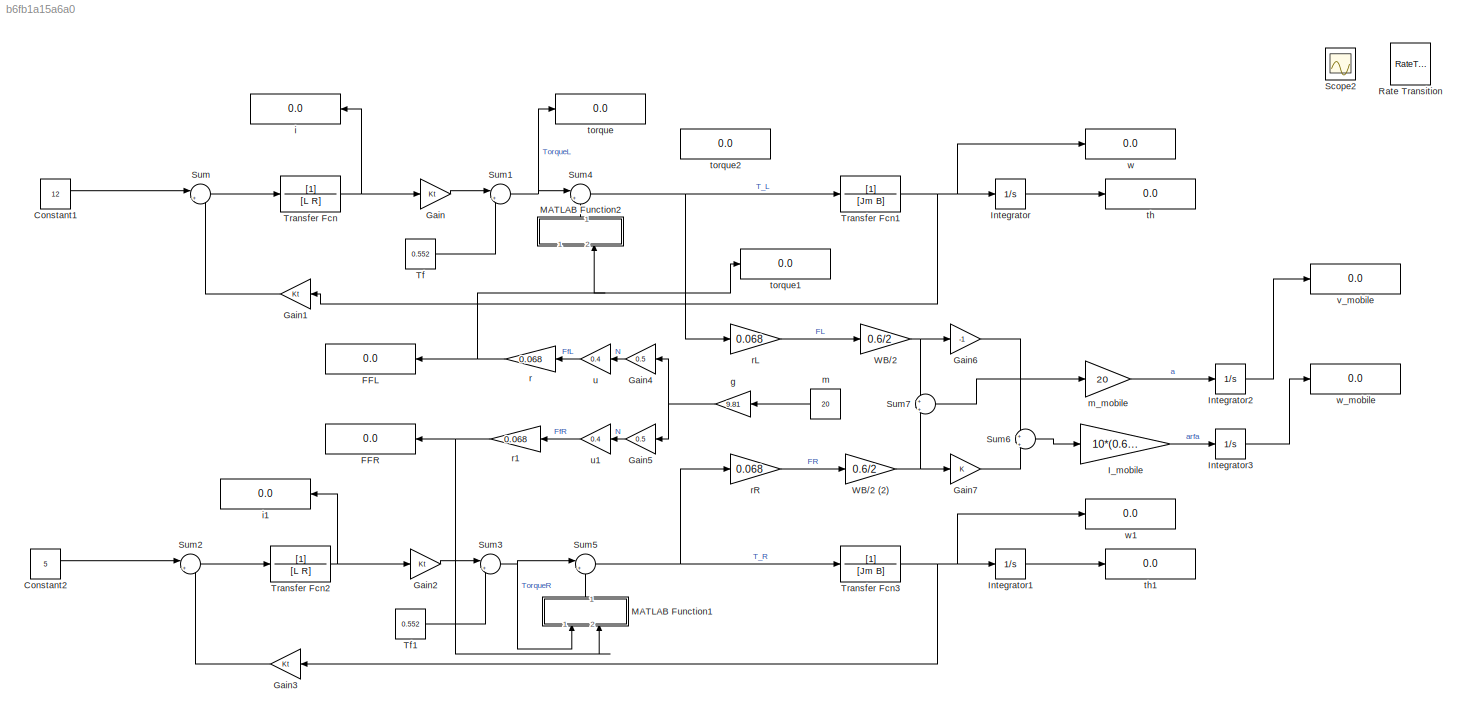
MODEL slx_b6fb1a15a6a0
KIND model
CONFIG AbsTol = auto
CONFIG FixedStep = 0.0001
CONFIG MaxStep = auto
CONFIG MinStep = auto
CONFIG RelTol = 1e-3
CONFIG SampleTimeConstraint = Unconstrained
CONFIG Solver = VariableStepAuto
CONFIG SolverMode = Auto
CONFIG SolverName = VariableStepAuto
CONFIG StartTime = 0.0
CONFIG StopTime = inf
BLOCK [Constant] Constant1
  Value = 12
BLOCK [Constant] Constant2
  Value = 5
BLOCK [Display] FFL
  Decimation = 1
  Ports = [1]
BLOCK [Display] FFR
  Decimation = 1
  Ports = [1]
BLOCK [Gain] Gain
  Gain = Kt
  OutDataTypeStr = Inherit: Inherit via internal rule
  ParamDataTypeStr = Inherit: Inherit via internal rule
  SaturateOnIntegerOverflow = off
BLOCK [Gain] Gain1
  Gain = Kt
  OutDataTypeStr = Inherit: Inherit via internal rule
  ParamDataTypeStr = Inherit: Inherit via internal rule
  SaturateOnIntegerOverflow = off
BLOCK [Gain] Gain2
  Gain = Kt
  OutDataTypeStr = Inherit: Inherit via internal rule
  ParamDataTypeStr = Inherit: Inherit via internal rule
  SaturateOnIntegerOverflow = off
BLOCK [Gain] Gain3
  Gain = Kt
  OutDataTypeStr = Inherit: Inherit via internal rule
  ParamDataTypeStr = Inherit: Inherit via internal rule
  SaturateOnIntegerOverflow = off
BLOCK [Gain] Gain4
  Gain = 0.5
  OutDataTypeStr = Inherit: Inherit via internal rule
  ParamDataTypeStr = Inherit: Inherit via internal rule
  SaturateOnIntegerOverflow = off
BLOCK [Gain] Gain5
  Gain = 0.5
  OutDataTypeStr = Inherit: Inherit via internal rule
  ParamDataTypeStr = Inherit: Inherit via internal rule
  SaturateOnIntegerOverflow = off
BLOCK [Gain] Gain6
  Gain = -1
  OutDataTypeStr = Inherit: Inherit via internal rule
  ParamDataTypeStr = Inherit: Inherit via internal rule
  SaturateOnIntegerOverflow = off
BLOCK [Gain] Gain7
  OutDataTypeStr = Inherit: Inherit via internal rule
  ParamDataTypeStr = Inherit: Inherit via internal rule
  SaturateOnIntegerOverflow = off
BLOCK [Gain] I_mobile
  Gain = 10*(0.6/2)^2
  OutDataTypeStr = Inherit: Inherit via internal rule
  ParamDataTypeStr = Inherit: Inherit via internal rule
  SaturateOnIntegerOverflow = off
BLOCK [Integrator] Integrator
  Ports = [1, 1]
BLOCK [Integrator] Integrator1
  Ports = [1, 1]
BLOCK [Integrator] Integrator2
  Ports = [1, 1]
BLOCK [Integrator] Integrator3
  Ports = [1, 1]
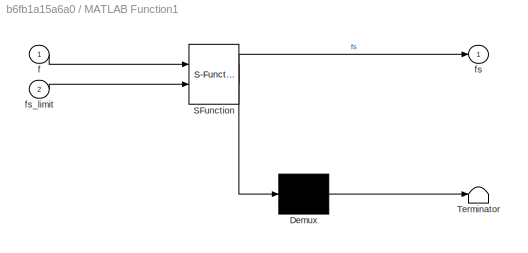
BLOCK [SubSystem] MATLAB Function1
  ErrorFcn = Stateflow.Translate.translate
  PermitHierarchicalResolution = ExplicitOnly
  Ports = [2, 1]
  RequestExecContextInheritance = off
  SFBlockType = MATLAB Function
  TreatAsAtomicUnit = on
  Variant = off
BLOCK [Demux] MATLAB Function1/ Demux 
  Outputs = 1
  Ports = [1, 1]
BLOCK [S-Function] MATLAB Function1/ SFunction 
  EnableBusSupport = on
  FunctionName = sf_sfun
  PortCounts = [2 2]
  Ports = [2, 2]
  SFunctionDeploymentMode = off
  Tag = Stateflow S-Function diff_mobile_model 1
BLOCK [Terminator] MATLAB Function1/ Terminator 
BLOCK [Inport] MATLAB Function1/f
  IconDisplay = Port number
BLOCK [Outport] MATLAB Function1/fs
  IconDisplay = Port number
BLOCK [Inport] MATLAB Function1/fs_limit
  IconDisplay = Port number
  Port = 2
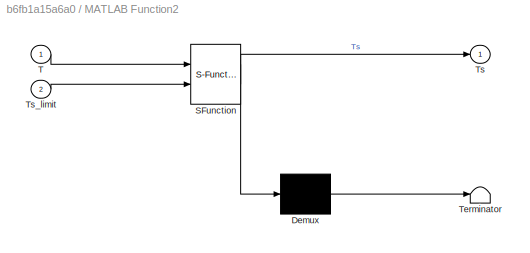
BLOCK [SubSystem] MATLAB Function2
  ErrorFcn = Stateflow.Translate.translate
  PermitHierarchicalResolution = ExplicitOnly
  Ports = [2, 1]
  RequestExecContextInheritance = off
  SFBlockType = MATLAB Function
  TreatAsAtomicUnit = on
  Variant = off
BLOCK [Demux] MATLAB Function2/ Demux 
  Outputs = 1
  Ports = [1, 1]
BLOCK [S-Function] MATLAB Function2/ SFunction 
  EnableBusSupport = on
  FunctionName = sf_sfun
  PortCounts = [2 2]
  Ports = [2, 2]
  SFunctionDeploymentMode = off
  Tag = Stateflow S-Function diff_mobile_model 2
BLOCK [Terminator] MATLAB Function2/ Terminator 
BLOCK [Inport] MATLAB Function2/T
  IconDisplay = Port number
BLOCK [Outport] MATLAB Function2/Ts
  IconDisplay = Port number
BLOCK [Inport] MATLAB Function2/Ts_limit
  IconDisplay = Port number
  Port = 2
BLOCK [RateTransition] Rate Transition
BLOCK [Scope] Scope2
  Ports = [1]
  ScopeSpecificationString = Simulink.scopes.TimeScopeBlockCfg('CurrentConfiguration', extmgr.ConfigurationSet(extmgr.Configuration('Core','General UI',true),extmgr.Configuration('Core','Source UI',true),extmgr.Configuration('Sources','WiredSimulink',true),extmgr.Configuration('Visuals','Time Domain',true,'SerializedDisplays',{struct('MinYLimReal','-1.5','MaxYLimReal','13.5','YLabelReal','','MinYLimMag','0.00000','MaxYLimMag'...<+1357ch>
BLOCK [Sum] Sum
  IconShape = round
  InputSameDT = off
  Inputs = |+-
  OutDataTypeStr = Inherit: Inherit via internal rule
  Ports = [2, 1]
  SaturateOnIntegerOverflow = off
BLOCK [Sum] Sum1
  IconShape = round
  InputSameDT = off
  Inputs = |+-
  OutDataTypeStr = Inherit: Inherit via internal rule
  Ports = [2, 1]
  SaturateOnIntegerOverflow = off
BLOCK [Sum] Sum2
  IconShape = round
  InputSameDT = off
  Inputs = |+-
  OutDataTypeStr = Inherit: Inherit via internal rule
  Ports = [2, 1]
  SaturateOnIntegerOverflow = off
BLOCK [Sum] Sum3
  IconShape = round
  InputSameDT = off
  Inputs = |+-
  OutDataTypeStr = Inherit: Inherit via internal rule
  Ports = [2, 1]
  SaturateOnIntegerOverflow = off
BLOCK [Sum] Sum4
  IconShape = round
  InputSameDT = off
  Inputs = |+-
  OutDataTypeStr = Inherit: Inherit via internal rule
  Ports = [2, 1]
  SaturateOnIntegerOverflow = off
BLOCK [Sum] Sum5
  IconShape = round
  InputSameDT = off
  Inputs = |+-
  OutDataTypeStr = Inherit: Inherit via internal rule
  Ports = [2, 1]
  SaturateOnIntegerOverflow = off
BLOCK [Sum] Sum6
  IconShape = round
  InputSameDT = off
  Inputs = +|+
  OutDataTypeStr = Inherit: Inherit via internal rule
  Ports = [2, 1]
  SaturateOnIntegerOverflow = off
BLOCK [Sum] Sum7
  IconShape = round
  InputSameDT = off
  Inputs = +|+
  OutDataTypeStr = Inherit: Inherit via internal rule
  Ports = [2, 1]
  SaturateOnIntegerOverflow = off
BLOCK [Constant] Tf
  Value = 0.552
BLOCK [Constant] Tf1
  Value = 0.552
BLOCK [TransferFcn] Transfer Fcn
  Denominator = [L R]
BLOCK [TransferFcn] Transfer Fcn1
  Denominator = [Jm B]
BLOCK [TransferFcn] Transfer Fcn2
  Denominator = [L R]
BLOCK [TransferFcn] Transfer Fcn3
  Denominator = [Jm B]
BLOCK [Gain] WB//2
  Gain = 0.6/2
  OutDataTypeStr = Inherit: Inherit via internal rule
  ParamDataTypeStr = Inherit: Inherit via internal rule
  SaturateOnIntegerOverflow = off
BLOCK [Gain] WB//2 (2)
  Gain = 0.6/2
  OutDataTypeStr = Inherit: Inherit via internal rule
  ParamDataTypeStr = Inherit: Inherit via internal rule
  SaturateOnIntegerOverflow = off
BLOCK [Gain] g
  Gain = 9.81
  OutDataTypeStr = Inherit: Inherit via internal rule
  ParamDataTypeStr = Inherit: Inherit via internal rule
  SaturateOnIntegerOverflow = off
BLOCK [Display] i
  Decimation = 1
  Ports = [1]
BLOCK [Display] i1
  Decimation = 1
  Ports = [1]
BLOCK [Constant] m
  Value = 20
BLOCK [Gain] m_mobile
  Gain = 20
  OutDataTypeStr = Inherit: Inherit via internal rule
  ParamDataTypeStr = Inherit: Inherit via internal rule
  SaturateOnIntegerOverflow = off
BLOCK [Gain] r
  Gain = 0.068
  OutDataTypeStr = Inherit: Inherit via internal rule
  ParamDataTypeStr = Inherit: Inherit via internal rule
  SaturateOnIntegerOverflow = off
BLOCK [Gain] r1
  Gain = 0.068
  OutDataTypeStr = Inherit: Inherit via internal rule
  ParamDataTypeStr = Inherit: Inherit via internal rule
  SaturateOnIntegerOverflow = off
BLOCK [Gain] rL
  Gain = 0.068
  OutDataTypeStr = Inherit: Inherit via internal rule
  ParamDataTypeStr = Inherit: Inherit via internal rule
  SaturateOnIntegerOverflow = off
BLOCK [Gain] rR
  Gain = 0.068
  OutDataTypeStr = Inherit: Inherit via internal rule
  ParamDataTypeStr = Inherit: Inherit via internal rule
  SaturateOnIntegerOverflow = off
BLOCK [Display] th
  Decimation = 1
  Ports = [1]
BLOCK [Display] th1
  Decimation = 1
  Ports = [1]
BLOCK [Display] torque
  Decimation = 1
  Ports = [1]
BLOCK [Display] torque1
  Decimation = 1
  Ports = [1]
BLOCK [Display] torque2
  Decimation = 1
  Ports = [1]
BLOCK [Gain] u
  Gain = 0.4
  OutDataTypeStr = Inherit: Inherit via internal rule
  ParamDataTypeStr = Inherit: Inherit via internal rule
  SaturateOnIntegerOverflow = off
BLOCK [Gain] u1
  Gain = 0.4
  OutDataTypeStr = Inherit: Inherit via internal rule
  ParamDataTypeStr = Inherit: Inherit via internal rule
  SaturateOnIntegerOverflow = off
BLOCK [Display] v_mobile
  Decimation = 1
  Ports = [1]
BLOCK [Display] w
  Decimation = 1
  Ports = [1]
BLOCK [Display] w1
  Decimation = 1
  Ports = [1]
BLOCK [Display] w_mobile
  Decimation = 1
  Ports = [1]
LINE Constant1:1 -> Sum:1
LINE Constant2:1 -> Sum2:1
LINE Gain1:1 -> Sum:2
LINE Gain2:1 -> Sum3:1
LINE Gain3:1 -> Sum2:2
LINE Gain4:1 -> u:1
LINE Gain5:1 -> u1:1
LINE Gain6:1 -> Sum6:1
LINE Gain7:1 -> Sum6:2
LINE Gain:1 -> Sum1:1
LINE I_mobile:1 -> Integrator3:1
LINE Integrator1:1 -> th1:1
LINE Integrator2:1 -> v_mobile:1
LINE Integrator3:1 -> w_mobile:1
LINE Integrator:1 -> th:1
LINE MATLAB Function1:1 -> Sum5:2
LINE MATLAB Function2:1 -> Sum4:2
NET Sum1:1 -> Sum4:1, torque:1
LINE Sum2:1 -> Transfer Fcn2:1
NET Sum3:1 -> MATLAB Function1:1, Sum5:1
NET Sum4:1 -> Transfer Fcn1:1, rL:1
NET Sum5:1 -> Transfer Fcn3:1, rR:1
LINE Sum6:1 -> I_mobile:1
LINE Sum7:1 -> m_mobile:1
LINE Sum:1 -> Transfer Fcn:1
LINE Tf1:1 -> Sum3:2
LINE Tf:1 -> Sum1:2
NET Transfer Fcn1:1 -> Gain1:1, Integrator:1, w:1
NET Transfer Fcn2:1 -> Gain2:1, i1:1
NET Transfer Fcn3:1 -> Gain3:1, Integrator1:1, w1:1
NET Transfer Fcn:1 -> Gain:1, i:1
NET WB//2 (2):1 -> Gain7:1, Sum7:2
NET WB//2:1 -> Gain6:1, Sum7:1
NET g:1 -> Gain4:1, Gain5:1
LINE m:1 -> g:1
LINE m_mobile:1 -> Integrator2:1
NET r1:1 -> FFR:1, MATLAB Function1:2
NET r:1 -> FFL:1, MATLAB Function2:2, torque1:1
LINE rL:1 -> WB//2:1
LINE rR:1 -> WB//2 (2):1
LINE u1:1 -> r1:1
LINE u:1 -> r:1
note: NET lines group one-source signal fan-out (src -> all destinations, sorted); 1:1 wires keep LINE
CHART MATLAB Function1 states=1 transitions=1
  STATE_LABEL 'eML_blk_kernel()'
  STATE_LABEL 'SCRIPT:\nfunction fs = fcn(f,fs_limit)\n%#codegen\n\nif f<=fs_limit\n    fs=f;\nelse\n    fs=fs_limit;\nend\n'
CHART MATLAB Function2 states=1 transitions=1
  STATE_LABEL 'eML_blk_kernel()'
  STATE_LABEL 'SCRIPT:\nfunction Ts = fcn(T,Ts_limit)\n%#codegen\n\nif T<=Ts_limit\n    Ts=T;\nelse\n    Ts=Ts_limit;\nend\n'
